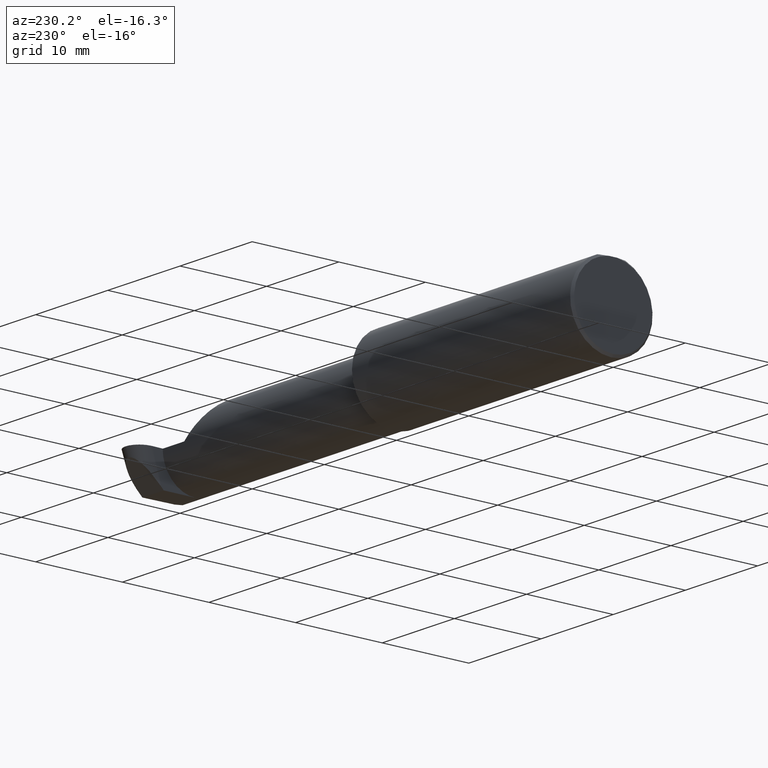
[diagram: clean part render]
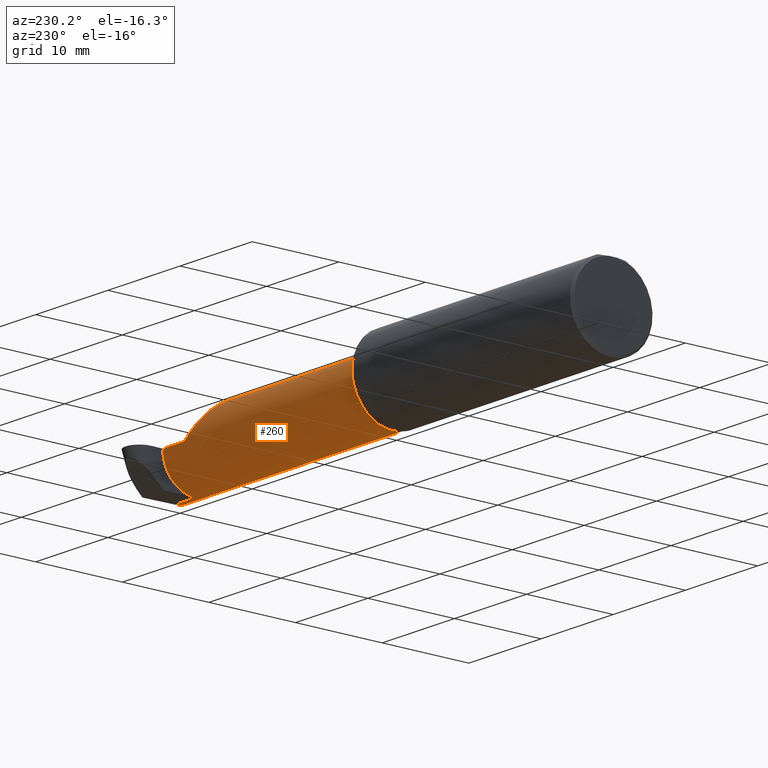
[diagram: same view with one face highlighted and labeled with its STEP entity id]
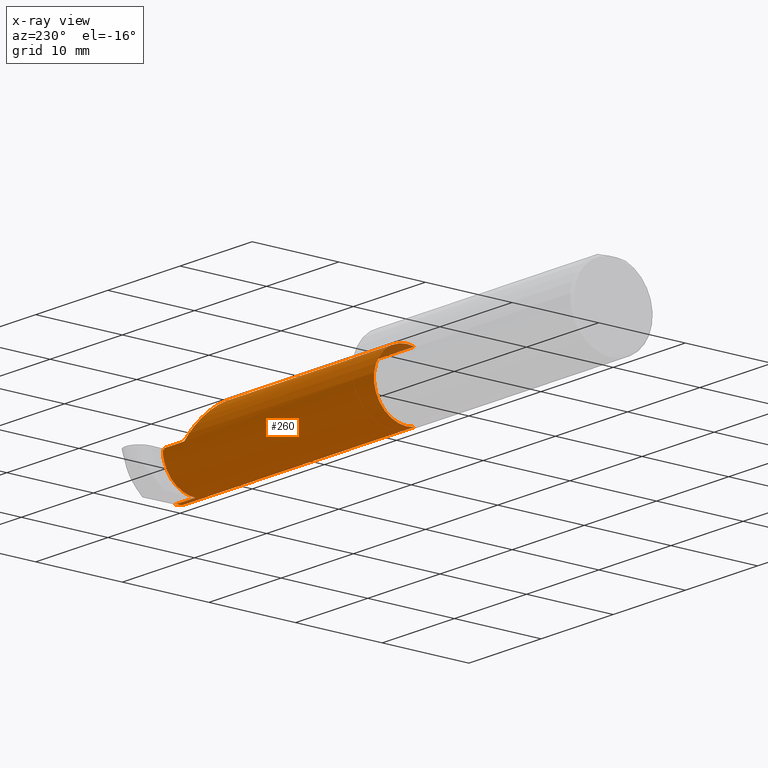
[diagram: x-ray of the same camera — body ghosted, the highlighted face saturated]
A machine part, auxiliary view. The second image highlights one B-rep face of the part: STEP entity #260.
The next image is the same camera in x-ray: the body ghosted, the highlighted face saturated — about 2% of this face is hidden behind the body in this view.
In plain terms, the highlighted cylindrical surface (partial cylindrical patch) has radius 3.81 mm, axis along (-1, -0, -0).
Its self-contained STEP definition (entity closure, byte-faithful):
#11 = DIRECTION ( 'NONE',  ( -1.000000000000000000, -7.267260269538567824E-17, -0.000000000000000000 ) ) ;
#19 = CARTESIAN_POINT ( 'NONE',  ( 2.260000000000000231, 0.06664999999999994540, 1.592040838891559588E-16 ) ) ;
#23 = CARTESIAN_POINT ( 'NONE',  ( 2.367407066079999733, 0.06655862405286443184, -0.005234924505372787196 ) ) ;
#32 = EDGE_CURVE ( 'NONE', #432, #120, #115, .T. ) ;
#33 = VERTEX_POINT ( 'NONE', #708 ) ;
#59 = VERTEX_POINT ( 'NONE', #76 ) ;
#61 = DIRECTION ( 'NONE',  ( -1.000000000000000000, -7.267260269538567824E-17, -0.000000000000000000 ) ) ;
#70 = EDGE_CURVE ( 'NONE', #173, #124, #673, .T. ) ;
#73 = CARTESIAN_POINT ( 'NONE',  ( 2.376713715390371906, 0.06655862405288431871, -0.005234924505376662568 ) ) ;
#76 = CARTESIAN_POINT ( 'NONE',  ( 2.113883229301068312, -0.1172600179964009698, 0.1461167706989301152 ) ) ;
#77 = ORIENTED_EDGE ( 'NONE', *, *, #218, .F. ) ;
#78 = CARTESIAN_POINT ( 'NONE',  ( 2.090221225029925911, -0.01530148607434185341, 0.1697787749700727655 ) ) ;
#100 = CARTESIAN_POINT ( 'NONE',  ( 2.367467983378090501, 0.06661954135095482510, -0.001744974835124260808 ) ) ;
#102 = VERTEX_POINT ( 'NONE', #23 ) ;
#115 = LINE ( 'NONE', #219, #148 ) ;
#120 = VERTEX_POINT ( 'NONE', #142 ) ;
#124 = VERTEX_POINT ( 'NONE', #455 ) ;
#125 = EDGE_CURVE ( 'NONE', #120, #156, #397, .T. ) ;
#129 =( BOUNDED_CURVE ( )  B_SPLINE_CURVE ( 3, ( #642, #422, #638, #703 ),
 .UNSPECIFIED., .F., .F. ) 
 B_SPLINE_CURVE_WITH_KNOTS ( ( 4, 4 ),
 ( 0.8789888184544196736, 1.107026853503863650 ),
 .UNSPECIFIED. ) 
 CURVE ( )  GEOMETRIC_REPRESENTATION_ITEM ( )  RATIONAL_B_SPLINE_CURVE ( ( 1.000000000000000000, 0.9956712472009929815, 0.9956712472009929815, 1.000000000000000000 ) ) 
 REPRESENTATION_ITEM ( '' )  );
#130 = DIRECTION ( 'NONE',  ( 1.000000000000000000, 7.267260269538567824E-17, 0.000000000000000000 ) ) ;
#133 = CARTESIAN_POINT ( 'NONE',  ( 2.376713715390371906, 0.06655862405288431871, -0.005234924505376662568 ) ) ;
#142 = CARTESIAN_POINT ( 'NONE',  ( 2.379376865616626979, -0.08334999999999999354, -0.1499999999999999944 ) ) ;
#148 = VECTOR ( 'NONE', #610, 39.37007874015748143 ) ;
#156 = VERTEX_POINT ( 'NONE', #73 ) ;
#160 = ORIENTED_EDGE ( 'NONE', *, *, #125, .F. ) ;
#170 = ORIENTED_EDGE ( 'NONE', *, *, #449, .T. ) ;
#173 = VERTEX_POINT ( 'NONE', #19 ) ;
#184 = ORIENTED_EDGE ( 'NONE', *, *, #557, .T. ) ;
#190 = CARTESIAN_POINT ( 'NONE',  ( 1.225000000000000089, -0.1172600179964008033, 0.1461167706989302262 ) ) ;
#189 = AXIS2_PLACEMENT_3D ( 'NONE', #290, #402, #574 ) ;
#207 = EDGE_LOOP ( 'NONE', ( #184, #473, #646, #170, #648, #426, #77, #160, #257, #615 ) ) ;
#218 = EDGE_CURVE ( 'NONE', #156, #102, #655, .T. ) ;
#219 = CARTESIAN_POINT ( 'NONE',  ( 2.733184360054361939, -0.08334999999999997966, -0.1500000000000000500 ) ) ;
#234 = VECTOR ( 'NONE', #130, 39.37007874015748143 ) ;
#246 = CARTESIAN_POINT ( 'NONE',  ( 2.379376865616626979, -0.08334999999999999354, -0.1499999999999999944 ) ) ;
#256 = LINE ( 'NONE', #635, #407 ) ;
#257 = ORIENTED_EDGE ( 'NONE', *, *, #32, .F. ) ;
#258 = CARTESIAN_POINT ( 'NONE',  ( 2.367437524729044895, 0.06658908270190962153, -0.003489949670248522050 ) ) ;
#260 = ADVANCED_FACE ( 'NONE', ( #276 ), #493, .T. ) ;
#276 = FACE_OUTER_BOUND ( 'NONE', #207, .T. ) ;
#290 = CARTESIAN_POINT ( 'NONE',  ( 1.225000000000000089, -0.08335000000000007681, 0.000000000000000000 ) ) ;
#312 = LINE ( 'NONE', #539, #522 ) ;
#316 = VECTOR ( 'NONE', #61, 39.37007874015748143 ) ;
#335 = DIRECTION ( 'NONE',  ( 0.000000000000000000, -1.000000000000000000, 0.000000000000000000 ) ) ;
#346 = CARTESIAN_POINT ( 'NONE',  ( 1.200000000000001288, 0.06655862405288423544, -0.005234924504802336391 ) ) ;
#348 = CARTESIAN_POINT ( 'NONE',  ( 2.113883229301068312, -0.1172600179964009698, 0.1461167706989301152 ) ) ;
#351 = VERTEX_POINT ( 'NONE', #190 ) ;
#366 = DIRECTION ( 'NONE',  ( -1.000000000000000000, -7.267260269538567824E-17, -0.000000000000000000 ) ) ;
#391 = VERTEX_POINT ( 'NONE', #571 ) ;
#397 =( BOUNDED_CURVE ( )  B_SPLINE_CURVE ( 3, ( #246, #560, #513, #133 ),
 .UNSPECIFIED., .F., .F. ) 
 B_SPLINE_CURVE_WITH_KNOTS ( ( 4, 4 ),
 ( 3.159045946109732217, 4.694935687864736806 ),
 .UNSPECIFIED. ) 
 CURVE ( )  GEOMETRIC_REPRESENTATION_ITEM ( )  RATIONAL_B_SPLINE_CURVE ( ( 1.000000000000000000, 0.8128932002257684974, 0.8128932002257684974, 1.000000000000000000 ) ) 
 REPRESENTATION_ITEM ( '' )  );
#401 = EDGE_CURVE ( 'NONE', #351, #391, #644, .T. ) ;
#402 = DIRECTION ( 'NONE',  ( -1.000000000000000000, -7.267260269538567824E-17, -0.000000000000000000 ) ) ;
#407 = VECTOR ( 'NONE', #366, 39.37007874015748143 ) ;
#422 = CARTESIAN_POINT ( 'NONE',  ( 2.489474166416076883, -0.1061291577212409298, -0.1486999626928445506 ) ) ;
#426 = ORIENTED_EDGE ( 'NONE', *, *, #575, .F. ) ;
#432 = VERTEX_POINT ( 'NONE', #517 ) ;
#449 = EDGE_CURVE ( 'NONE', #59, #173, #541, .T. ) ;
#455 = CARTESIAN_POINT ( 'NONE',  ( 2.367498442027135663, 0.06665000000000002867, 0.000000000000000000 ) ) ;
#457 = CARTESIAN_POINT ( 'NONE',  ( 2.155331797197863608, 0.06664999999999994540, 0.1046682028021362204 ) ) ;
#473 = ORIENTED_EDGE ( 'NONE', *, *, #401, .F. ) ;
#493 = CYLINDRICAL_SURFACE ( 'NONE', #654, 0.1499999999999999667 ) ;
#500 = EDGE_CURVE ( 'NONE', #351, #59, #312, .T. ) ;
#513 = CARTESIAN_POINT ( 'NONE',  ( 2.378257866392183395, 0.06357628547474987457, -0.09063792740365821110 ) ) ;
#517 = CARTESIAN_POINT ( 'NONE',  ( 2.490246926064548560, -0.08334999999999997966, -0.1500000000000000500 ) ) ;
#522 = VECTOR ( 'NONE', #645, 39.37007874015748143 ) ;
#528 = EDGE_CURVE ( 'NONE', #33, #432, #129, .T. ) ;
#534 = CARTESIAN_POINT ( 'NONE',  ( 2.367498442027135663, 0.06665000000000002867, 0.000000000000000000 ) ) ;
#539 = CARTESIAN_POINT ( 'NONE',  ( 1.799861995000000103, -0.1172600179964007061, 0.1461167706989303094 ) ) ;
#541 =( BOUNDED_CURVE ( )  B_SPLINE_CURVE ( 3, ( #348, #78, #457, #676 ),
 .UNSPECIFIED., .F., .T. ) 
 B_SPLINE_CURVE_WITH_KNOTS ( ( 4, 4 ),
 ( 6.055147272130140479, 7.853981633974482790 ),
 .UNSPECIFIED. ) 
 CURVE ( )  GEOMETRIC_REPRESENTATION_ITEM ( )  RATIONAL_B_SPLINE_CURVE ( ( 1.000000000000000000, 0.7480442670255262883, 0.7480442670255262883, 1.000000000000000000 ) ) 
 REPRESENTATION_ITEM ( '' )  );
#557 = EDGE_CURVE ( 'NONE', #33, #391, #256, .T. ) ;
#560 = CARTESIAN_POINT ( 'NONE',  ( 2.379349912360631425, 0.002105059811801137434, -0.1499999999999999667 ) ) ;
#571 = CARTESIAN_POINT ( 'NONE',  ( 1.225000000000000089, -0.1172600179964007755, -0.1461167706989302262 ) ) ;
#574 = DIRECTION ( 'NONE',  ( 0.000000000000000000, -1.000000000000000000, 0.000000000000000000 ) ) ;
#575 = EDGE_CURVE ( 'NONE', #102, #124, #641, .T. ) ;
#586 = CARTESIAN_POINT ( 'NONE',  ( 2.367407066079999733, 0.06655862405286443184, -0.005234924505372787196 ) ) ;
#600 = CARTESIAN_POINT ( 'NONE',  ( 1.199999999999999956, -0.08335000000000007681, 0.000000000000000000 ) ) ;
#610 = DIRECTION ( 'NONE',  ( -1.000000000000000000, -0.000000000000000000, -0.000000000000000000 ) ) ;
#615 = ORIENTED_EDGE ( 'NONE', *, *, #528, .F. ) ;
#627 = CARTESIAN_POINT ( 'NONE',  ( 1.199999999999999956, 0.06664999999999987601, 1.592040838891559588E-16 ) ) ;
#635 = CARTESIAN_POINT ( 'NONE',  ( 1.799861995000000103, -0.1172600179964007061, -0.1461167706989303094 ) ) ;
#638 = CARTESIAN_POINT ( 'NONE',  ( 2.489847897735300464, -0.09477667630339420279, -0.1499999999999999667 ) ) ;
#641 = B_SPLINE_CURVE_WITH_KNOTS ( 'NONE', 3,
 ( #586, #258, #100, #534 ),
 .UNSPECIFIED., .F., .F.,
 ( 4, 4 ),
 ( 0.000000000000000000, 1.000000000000000000 ),
 .UNSPECIFIED. ) ;
#642 = CARTESIAN_POINT ( 'NONE',  ( 2.489130585478359858, -0.1172600179964006645, -0.1461167706989303094 ) ) ;
#644 = CIRCLE ( 'NONE', #189, 0.1499999999999999112 ) ;
#645 = DIRECTION ( 'NONE',  ( 1.000000000000000000, 7.267260269538567824E-17, 0.000000000000000000 ) ) ;
#646 = ORIENTED_EDGE ( 'NONE', *, *, #500, .T. ) ;
#648 = ORIENTED_EDGE ( 'NONE', *, *, #70, .T. ) ;
#654 = AXIS2_PLACEMENT_3D ( 'NONE', #600, #11, #335 ) ;
#655 = LINE ( 'NONE', #346, #316 ) ;
#673 = LINE ( 'NONE', #627, #234 ) ;
#676 = CARTESIAN_POINT ( 'NONE',  ( 2.260000000000000231, 0.06664999999999994540, 1.592040838891559588E-16 ) ) ;
#703 = CARTESIAN_POINT ( 'NONE',  ( 2.490246926064548560, -0.08334999999999997966, -0.1500000000000000500 ) ) ;
#708 = CARTESIAN_POINT ( 'NONE',  ( 2.489130585478359858, -0.1172600179964006645, -0.1461167706989303094 ) ) ;